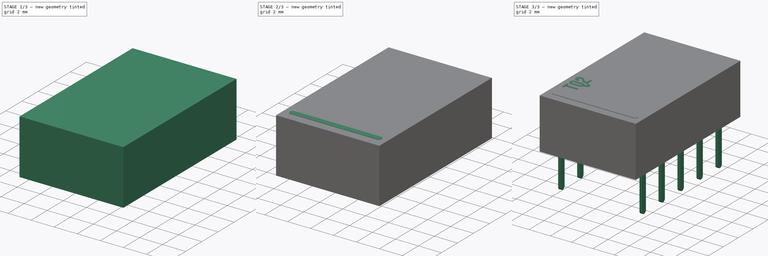
[diagram: build sequence overview — one tinted view per stage of 3, left to right]
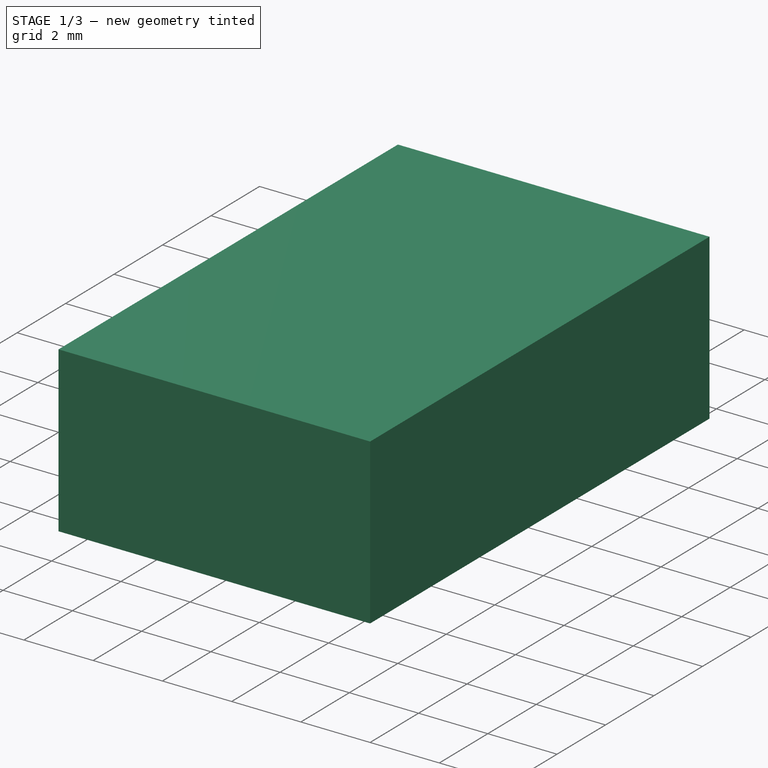
[diagram: stage 1 of 3 — iso view after this stage's code; geometry added in this stage tinted green]
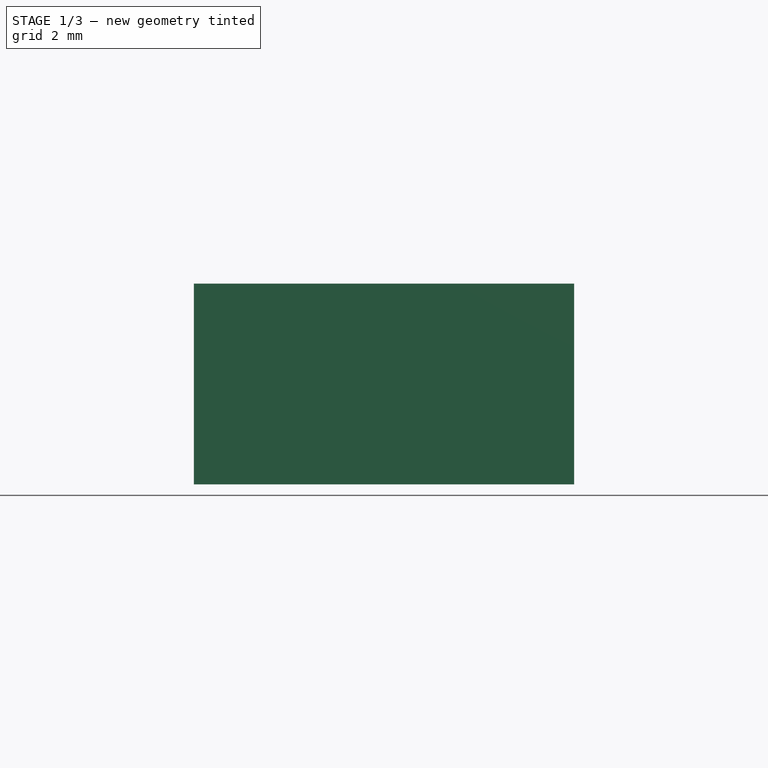
[diagram: stage 1 of 3 — front view after this stage's code; geometry added in this stage tinted green]
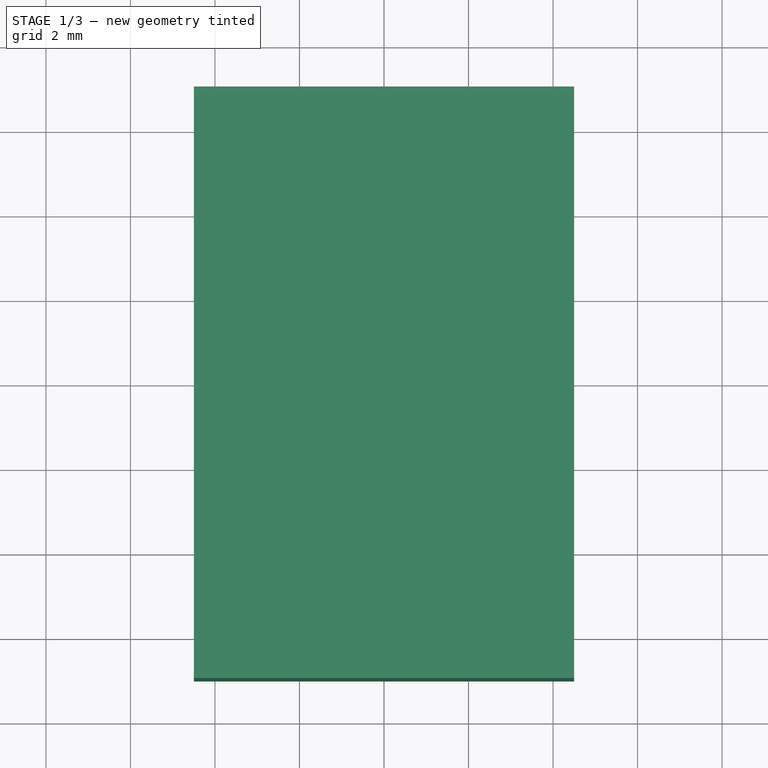
[diagram: stage 1 of 3 — top view after this stage's code; geometry added in this stage tinted green]
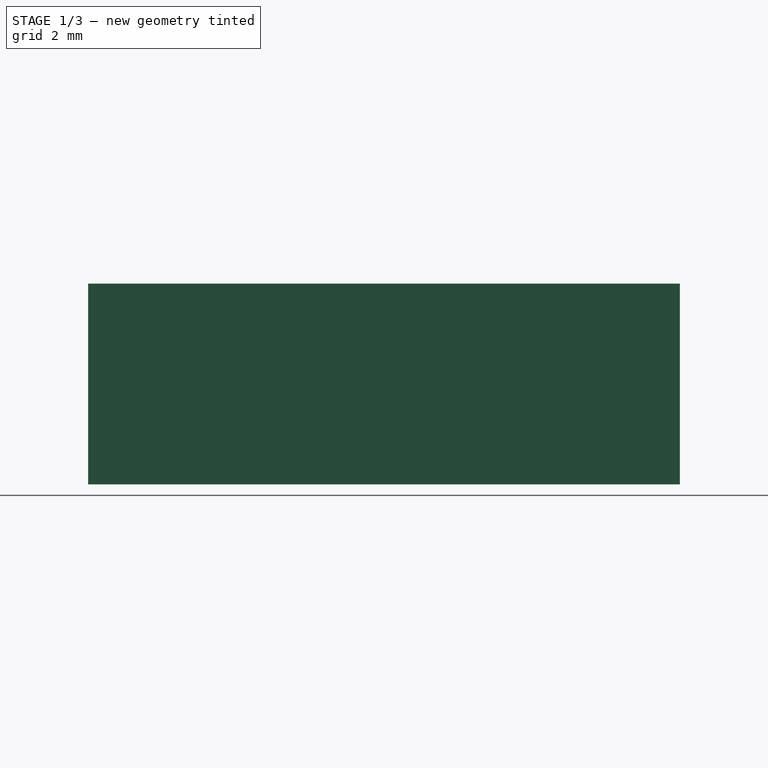
[diagram: stage 1 of 3 — right view after this stage's code; geometry added in this stage tinted green]
FCSTD DOCUMENT  (FreeCAD 0.19R16945 (Git))
Label: Panasonic Relay Series
License: All rights reserved
LicenseURL: http://en.wikipedia.org/wiki/All_rights_reserved
objects: Sketcher::SketchObject×6, PartDesign::Pad×5, PartDesign::Pocket×2, Part::FeaturePython×1, Part::Part2DObjectPython×1, PartDesign::Body×1, App::Part×1
note: 23 computed .brp shape members not serialized (recipe doc carries the construction recipe); baked Part::Feature solids carry a one-line shape summary decoded from their .brp

FEATURE [Sketcher::SketchObject] Sketch
  MapMode = 5
  Support = -> [XY_Plane]
  sketch-geometry (4):
    g0: LineSegment StartX=4.5 StartY=-7 StartZ=0 EndX=-4.5 EndY=-7 EndZ=0
    g1: LineSegment StartX=-4.5 StartY=-7 StartZ=0 EndX=-4.5 EndY=7 EndZ=0
    g2: LineSegment StartX=-4.5 StartY=7 StartZ=0 EndX=4.5 EndY=7 EndZ=0
    g3: LineSegment StartX=4.5 StartY=7 StartZ=0 EndX=4.5 EndY=-7 EndZ=0
  constraints (10):
    c: Coincident(g0,g1)
    c: Coincident(g1,g2)
    c: Coincident(g2,g3)
    c: Coincident(g3,g0)
    c: Horizontal(g0)
    c: Vertical(g1)
    c: Symmetric(g1,g2,g-2)
    c: Symmetric(g2,g0,g-1)
    c: DistanceX(g2,g2) = 9
    c: DistanceY(g3,g3) = 14
FEATURE [PartDesign::Pad] Pad  label="MainPad"
  Length = 5
  Length2 = 100
  Profile = -> Sketch
  Type = 0
FEATURE [Sketcher::SketchObject] Sketch003
  ExternalGeometry = -> [Pad]
  MapMode = 5
  Placement = pos=(-4.5,0,0) rot=(0.57735,-0.57735,-0.57735;2.0944rad)
  Support = -> [Pad]
  sketch-geometry (4):
    g0: LineSegment StartX=-7 StartY=0 StartZ=0 EndX=7 EndY=0 EndZ=0
    g1: LineSegment StartX=7 StartY=0 StartZ=0 EndX=7 EndY=0.25 EndZ=0
    g2: LineSegment StartX=7 StartY=0.25 StartZ=0 EndX=-7 EndY=0.25 EndZ=0
    g3: LineSegment StartX=-7 StartY=0.25 StartZ=0 EndX=-7 EndY=0 EndZ=0
  constraints (11):
    c: Coincident(g0,g1)
    c: Coincident(g1,g2)
    c: Coincident(g2,g3)
    c: Coincident(g3,g0)
    c: Horizontal(g0)
    c: Horizontal(g2)
    c: Vertical(g1)
    c: Vertical(g3)
    c: Coincident(g0,g-3)
    c: PointOnObject(g1,g-4)
    c: DistanceY(g1,g1) = 0.25
FEATURE [PartDesign::Pocket] Pocket  label="BottomPocket"
  BaseFeature = -> Pad
  Length = 5
  Length2 = 100
  Profile = -> Sketch003
  Type = 1
FEATURE [Sketcher::SketchObject] Sketch007
  ExternalGeometry = -> [Pocket]
  MapMode = 5
  Placement = pos=(0,0,0.25) rot=(1,0,0;3.14159rad)
  Support = -> [Pocket]
  sketch-geometry (4):
    g0: LineSegment StartX=-4.3 StartY=6.8 StartZ=0 EndX=4.3 EndY=6.8 EndZ=0
    g1: LineSegment StartX=4.3 StartY=6.8 StartZ=0 EndX=4.3 EndY=-6.8 EndZ=0
    g2: LineSegment StartX=4.3 StartY=-6.8 StartZ=0 EndX=-4.3 EndY=-6.8 EndZ=0
    g3: LineSegment StartX=-4.3 StartY=-6.8 StartZ=0 EndX=-4.3 EndY=6.8 EndZ=0
  constraints (11):
    c: Coincident(g2,g3)
    c: Coincident(g0,g3)
    c: Coincident(g1,g2)
    c: Coincident(g0,g1)
    c: DistanceX(g1,g-3) = 0.2
    c: DistanceY(g-3,g1) = 0.2
    c: Horizontal(g2)
    c: Vertical(g3)
    c: Symmetric(g1,g0,g-1)
    c: Horizontal(g0)
    c: Vertical(g1)
FEATURE [PartDesign::Pocket] Pocket003  label="BottomPocket001"
  BaseFeature = -> Pocket
  Length = 0.1
  Length2 = 100
  Profile = -> Sketch007
  Type = 0
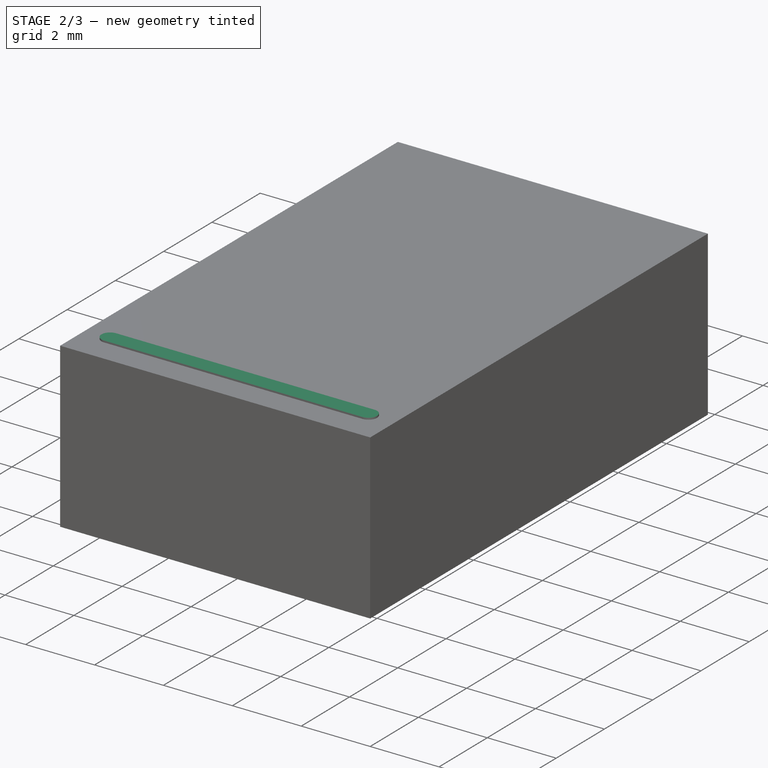
[diagram: stage 2 of 3 — iso view after this stage's code; geometry added in this stage tinted green]
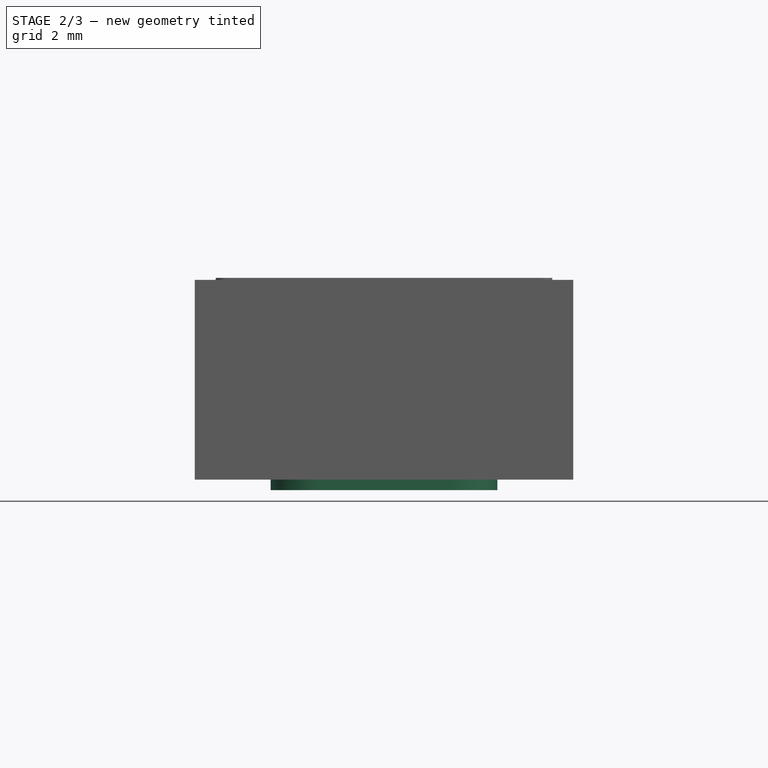
[diagram: stage 2 of 3 — front view after this stage's code; geometry added in this stage tinted green]
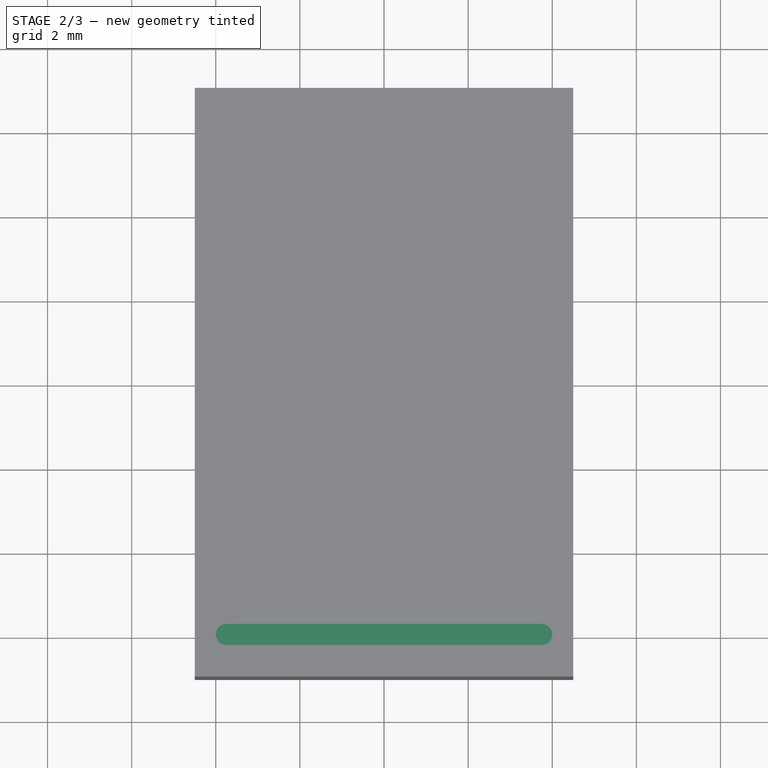
[diagram: stage 2 of 3 — top view after this stage's code; geometry added in this stage tinted green]
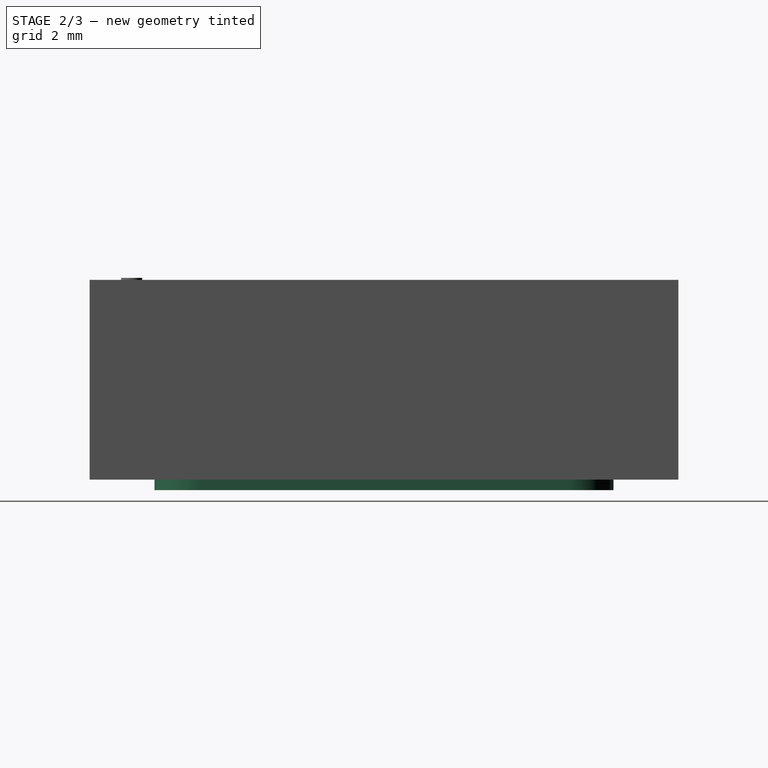
[diagram: stage 2 of 3 — right view after this stage's code; geometry added in this stage tinted green]
FEATURE [Sketcher::SketchObject] Sketch008
  MapMode = 5
  Placement = pos=(0,0,0.35) rot=(1,0,0;3.14159rad)
  Support = -> [Pocket003]
  sketch-geometry (8):
    g0: LineSegment StartX=-1.62949 StartY=5.4578 StartZ=0 EndX=1.62949 EndY=5.4578 EndZ=0
    g1: LineSegment StartX=2.69484 StartY=4.39246 StartZ=0 EndX=2.69484 EndY=-4.39246 EndZ=0
    g2: LineSegment StartX=1.62949 StartY=-5.4578 StartZ=0 EndX=-1.62949 EndY=-5.4578 EndZ=0
    g3: LineSegment StartX=-2.69484 StartY=-4.39246 StartZ=0 EndX=-2.69484 EndY=4.39246 EndZ=0
    g4: ArcOfCircle CenterX=-1.62949 CenterY=4.39246 CenterZ=0 NormalX=0 NormalY=0 NormalZ=1 AngleXU=0 Radius=1.06535 StartAngle=1.5708 EndAngle=3.14159
    g5: ArcOfCircle CenterX=1.62949 CenterY=4.39246 CenterZ=0 NormalX=0 NormalY=0 NormalZ=1 AngleXU=0 Radius=1.06535 StartAngle=1e-16 EndAngle=1.5708
    g6: ArcOfCircle CenterX=1.62949 CenterY=-4.39246 CenterZ=0 NormalX=0 NormalY=0 NormalZ=1 AngleXU=0 Radius=1.06535 StartAngle=4.71239 EndAngle=6.28319
    g7: ArcOfCircle CenterX=-1.62949 CenterY=-4.39246 CenterZ=0 NormalX=0 NormalY=0 NormalZ=1 AngleXU=0 Radius=1.06535 StartAngle=3.14159 EndAngle=4.71239
  constraints (15):
    c: Horizontal(g0)
    c: Horizontal(g2)
    c: Vertical(g1)
    c: Vertical(g3)
    c: Tangent(g0,g4) = 1.5708
    c: Tangent(g3,g4) = 1.5708
    c: Tangent(g0,g5) = 1.5708
    c: Tangent(g1,g5) = 1.5708
    c: Tangent(g1,g6) = 1.5708
    c: Tangent(g2,g6) = 1.5708
    c: Tangent(g2,g7) = 1.5708
    c: Tangent(g3,g7) = 1.5708
    c: Equal(g7,g6)
    c: Symmetric(g3,g1,g-2)
    c: Symmetric(g0,g2,g-1)
FEATURE [PartDesign::Pad] Pad004  label="BottomPad"
  BaseFeature = -> Pocket003
  Length = 0.35
  Length2 = 100
  Profile = -> Sketch008
  Type = 0
FEATURE [Sketcher::SketchObject] Sketch010
  ExternalGeometry = -> [Pad004]
  MapMode = 5
  Placement = pos=(0,0,5) rot=(0,0,1;0rad)
  Support = -> [Pad004]
  sketch-geometry (4):
    g0: ArcOfCircle CenterX=-3.75 CenterY=-6 CenterZ=0 NormalX=0 NormalY=0 NormalZ=1 AngleXU=0 Radius=0.25 StartAngle=1.5708 EndAngle=4.71239
    g1: ArcOfCircle CenterX=3.75 CenterY=-6 CenterZ=0 NormalX=0 NormalY=0 NormalZ=1 AngleXU=0 Radius=0.25 StartAngle=4.71239 EndAngle=7.85398
    g2: LineSegment StartX=-3.75 StartY=-6.25 StartZ=0 EndX=3.75 EndY=-6.25 EndZ=0
    g3: LineSegment StartX=-3.75 StartY=-5.75 StartZ=0 EndX=3.75 EndY=-5.75 EndZ=0
  constraints (9):
    c: Tangent(g0,g3) = 1.5708
    c: Tangent(g0,g2) = -1.5708
    c: Tangent(g2,g1) = -1.5708
    c: Tangent(g3,g1) = 1.5708
    c: Horizontal(g2)
    c: Symmetric(g1,g0,g-2)
    c: DistanceY(g1,g1) = 0.5
    c: DistanceY(g-3,g0) = 1
    c: DistanceX(g-3,g0) = 0.75
FEATURE [PartDesign::Pad] Pad006  label="CoilMarkingPad"
  BaseFeature = -> Pad004
  Length = 0.05
  Length2 = 100
  Profile = -> Sketch010
  Type = 0
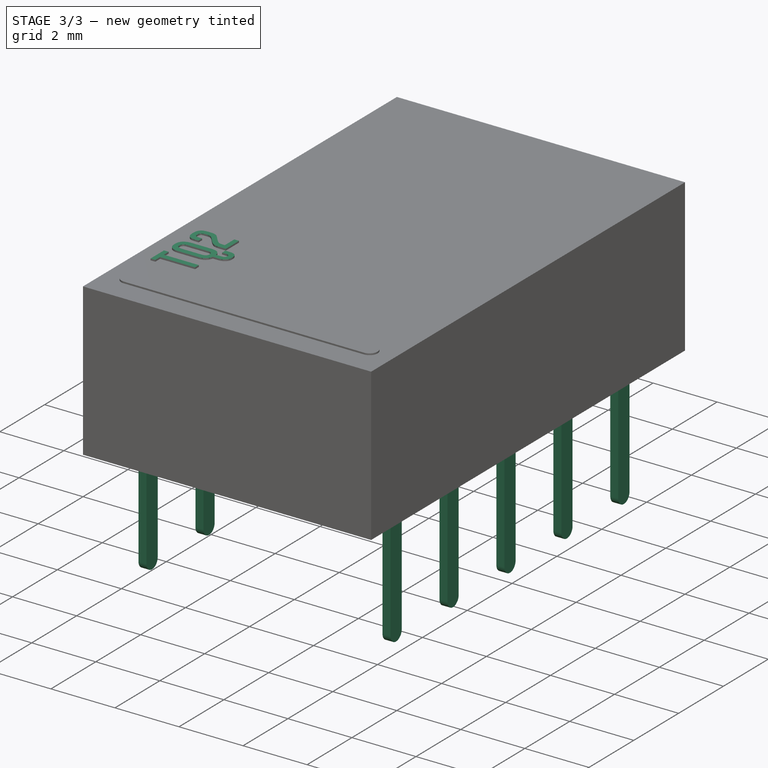
[diagram: stage 3 of 3 — iso view after this stage's code; geometry added in this stage tinted green]
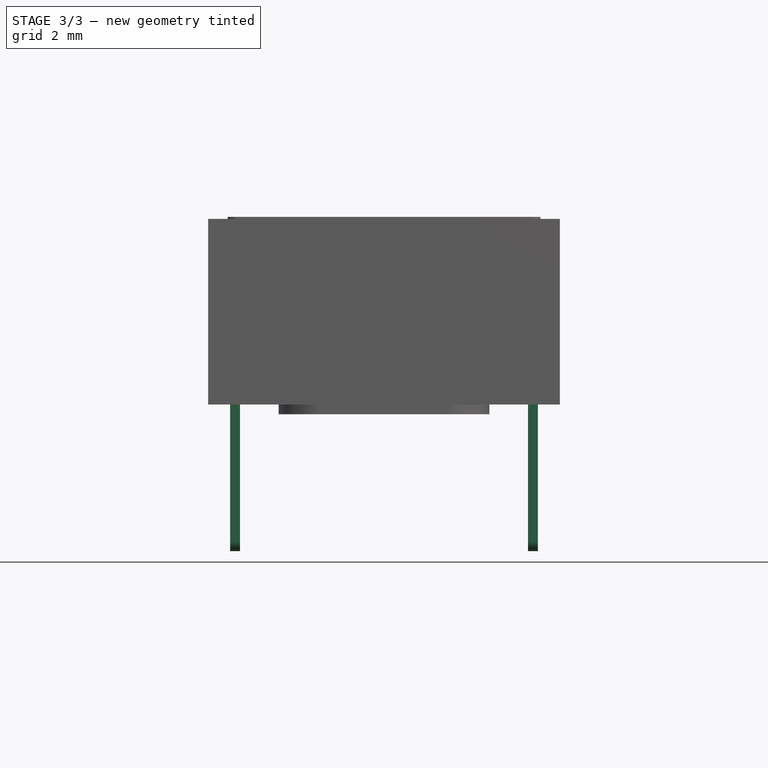
[diagram: stage 3 of 3 — front view after this stage's code; geometry added in this stage tinted green]
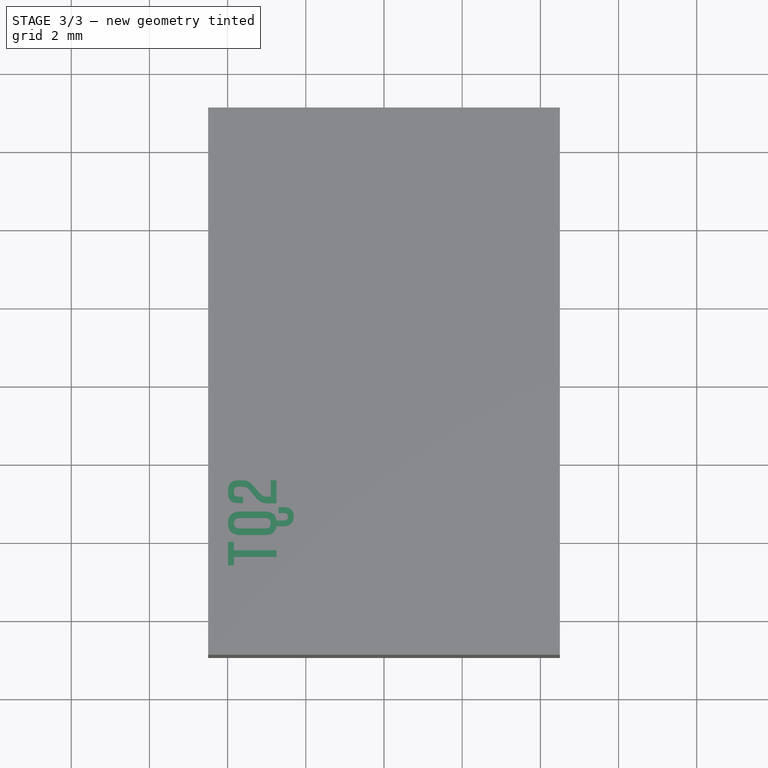
[diagram: stage 3 of 3 — top view after this stage's code; geometry added in this stage tinted green]
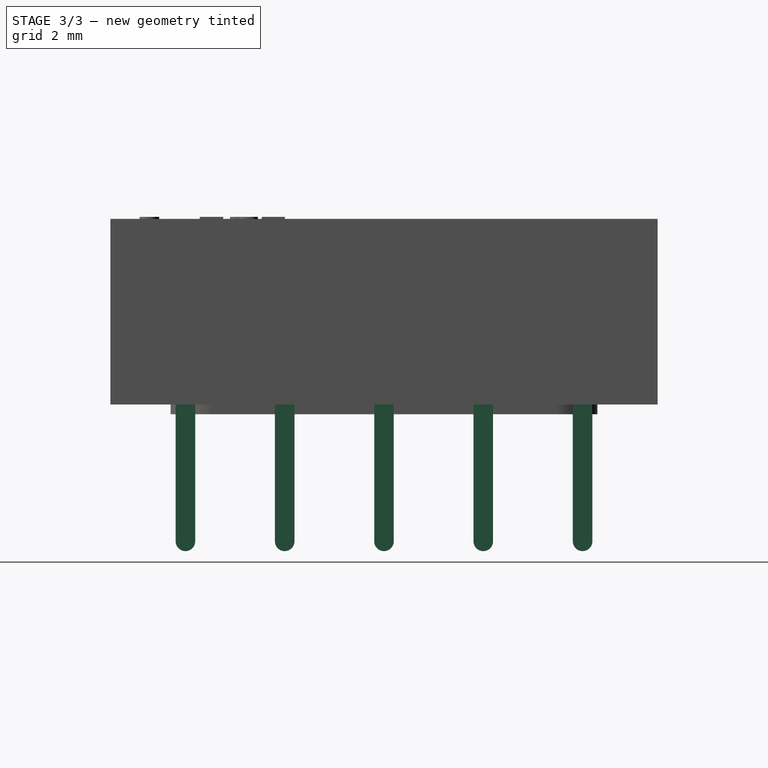
[diagram: stage 3 of 3 — right view after this stage's code; geometry added in this stage tinted green]
FEATURE [Sketcher::SketchObject] Sketch009
  AttachmentOffset = pos=(0,0,3.81) rot=(0,0,1;0rad)
  MapMode = 5
  Placement = pos=(3.81,-1e-15,1e-15) rot=(0.57735,0.57735,0.57735;2.0944rad)
  sketch-geometry (6):
    g0: ArcOfCircle CenterX=-5.08 CenterY=-3.25 CenterZ=0 NormalX=0 NormalY=0 NormalZ=1 AngleXU=0 Radius=0.25 StartAngle=3.14159 EndAngle=6.28319
    g1: LineSegment StartX=-5.33 StartY=-3.25 StartZ=0 EndX=-5.33 EndY=0.25 EndZ=0
    g2: LineSegment StartX=-5.33 StartY=0.25 StartZ=0 EndX=-4.83 EndY=0.25 EndZ=0
    g3: LineSegment StartX=-4.83 StartY=0.25 StartZ=0 EndX=-4.83 EndY=-3.25 EndZ=0
    g4: GeomPoint X=-5.33 Y=0 Z=0
    g5: GeomPoint X=-5.08 Y=-3.5 Z=0
  constraints (16):
    c: Tangent(g0,g1) = 1.5708
    c: Coincident(g1,g2)
    c: Coincident(g2,g3)
    c: Coincident(g3,g0)
    c: Vertical(g3)
    c: Equal(g3,g1)
    c: Vertical(g1)
    c: Horizontal(g2)
    c: PointOnObject(g4,g1)
    c: PointOnObject(g4,g-1)
    c: DistanceY(g4,g1) = 0.25
    c: DistanceX(g0,g0) = 0.5
    c: DistanceX(g0,g-1) = 5.08
    c: PointOnObject(g5,g0)
    c: Vertical(g5,g0)
    c: DistanceY(g5,g-1) = 3.5
FEATURE [PartDesign::Pad] Pad005
  Length = 0.25
  Length2 = 100
  Midplane = true
  Placement = pos=(3.81,-1e-15,1e-15) rot=(0.57735,0.57735,0.57735;2.0944rad)
  Profile = -> Sketch009
  Reversed = true
  Type = 0
FEATURE [Part::FeaturePython] Array  label="TQ2_Pins"  # Draft array (typed FeaturePython)
  Angle = 360
  ArrayType = 0
  Axis = (0,0,1)
  Base = -> Pad005
  Center = (0,0,0)
  Fuse = false
  IntervalAxis = (0,0,0)
  IntervalX = (-7.62,0,0)
  IntervalY = (0,2.54,0)
  IntervalZ = (0,0,1)
  NumberPolar = 1
  NumberX = 2
  NumberY = 5
  NumberZ = 1
FEATURE [Part::Part2DObjectPython] ShapeString  # Draft 2D object (typed FeaturePython)
  AttachmentOffset = pos=(-1,-1,0) rot=(0,0,-1;1.5708rad)
  FontFile = <userpath>/Desktop/GitHub/freecad-projects/00-fonts/coolvetica condensed rg.ttf
  MapMode = 6
  Placement = pos=(-2.75,-4.75,5) rot=(0,0,1;1.5708rad)
  Size = 0.75
  String = TQ2
  Support = -> [Pad006]
  Tracking = 0.125
FEATURE [PartDesign::Pad] Pad007  label="ShapeStringPad"
  BaseFeature = -> Pad006
  Length = 0.05
  Length2 = 100
  Profile = -> ShapeString
  Type = 0
FEATURE [PartDesign::Body] Body  label="TQ2_Body"
  Group = -> [Sketch,Pad,Sketch003,Pocket,Sketch007,Pocket003,Sketch008,Pad004,Sketch010,Pad006,ShapeString,Pad007]
  Origin = -> Origin
FEATURE [App::Part] Part  label="TQ2"
  Group = -> [Body,Sketch009,Pad005,Array]
  Origin = -> Origin001
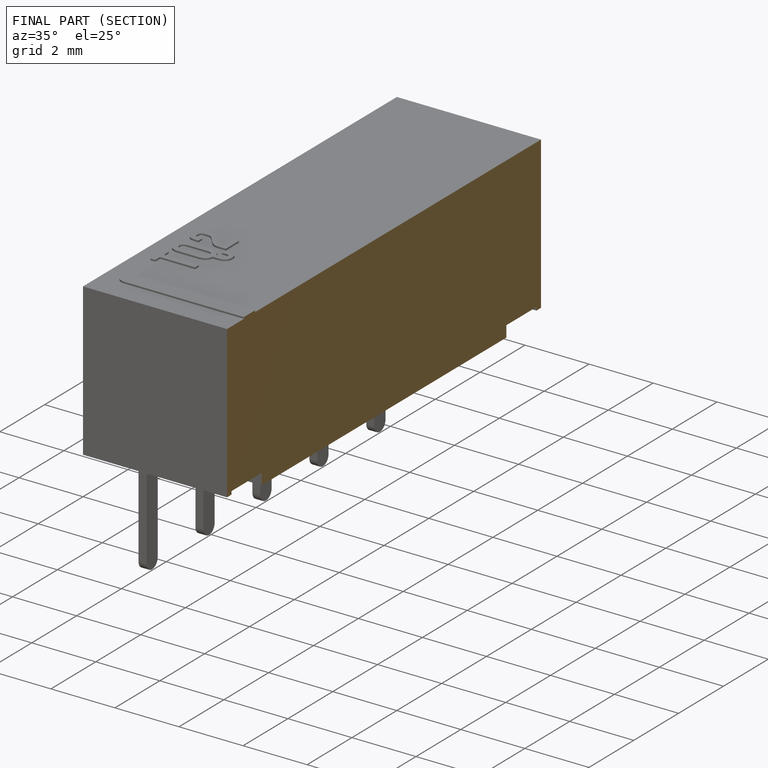
[diagram: finished part — half-section view (interior)]
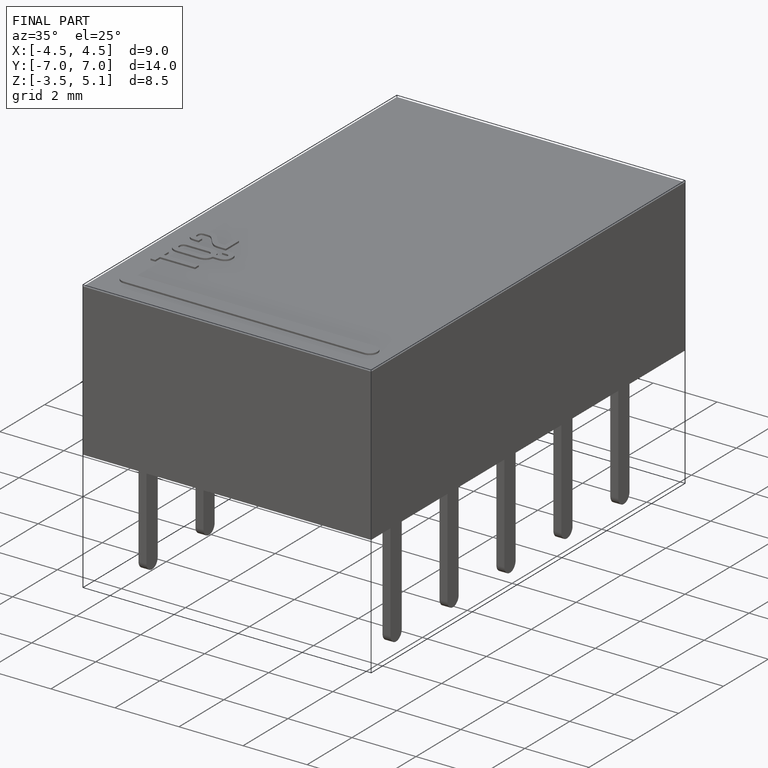
[diagram: finished part — iso view with bounding-box wireframe]
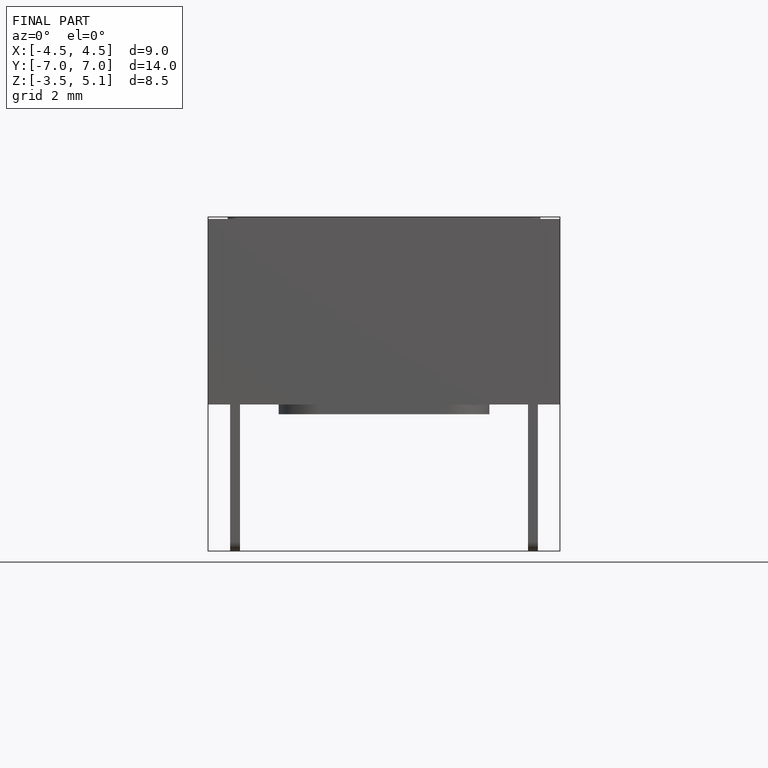
[diagram: finished part — front view with bounding-box wireframe]
